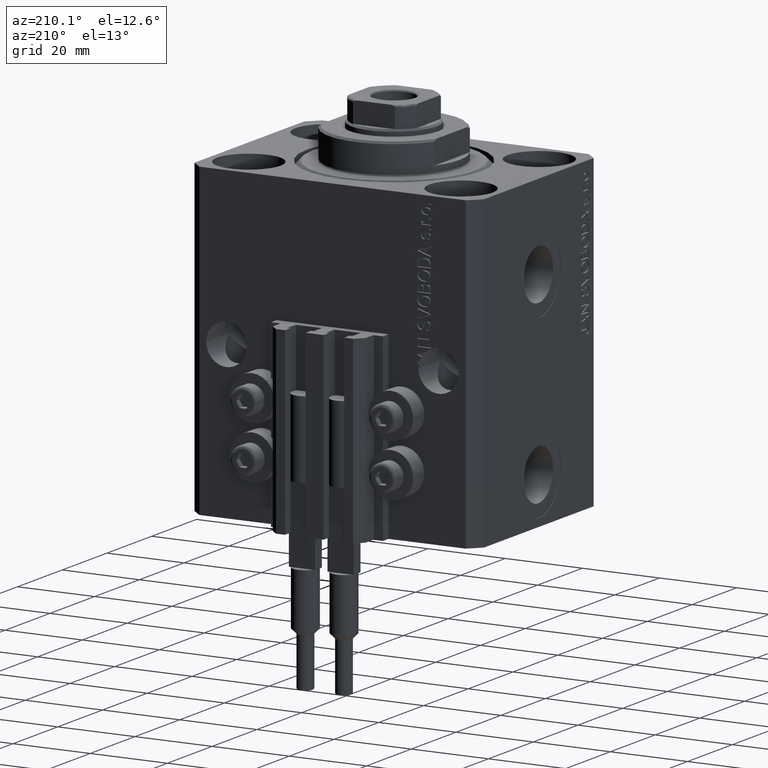
[diagram: clean part render]
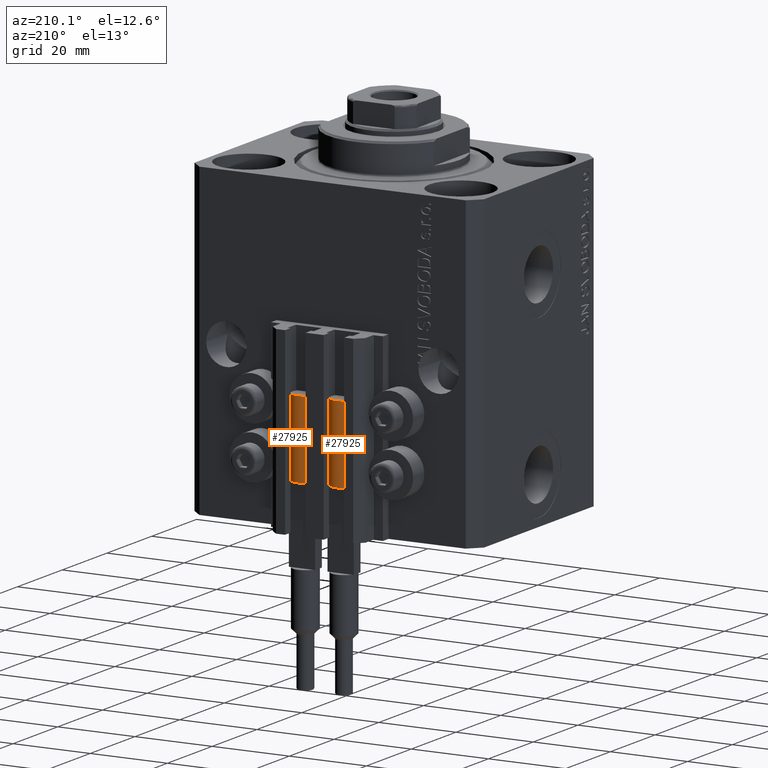
[diagram: same view with one multi-face feature highlighted, each face labeled with its STEP entity id]
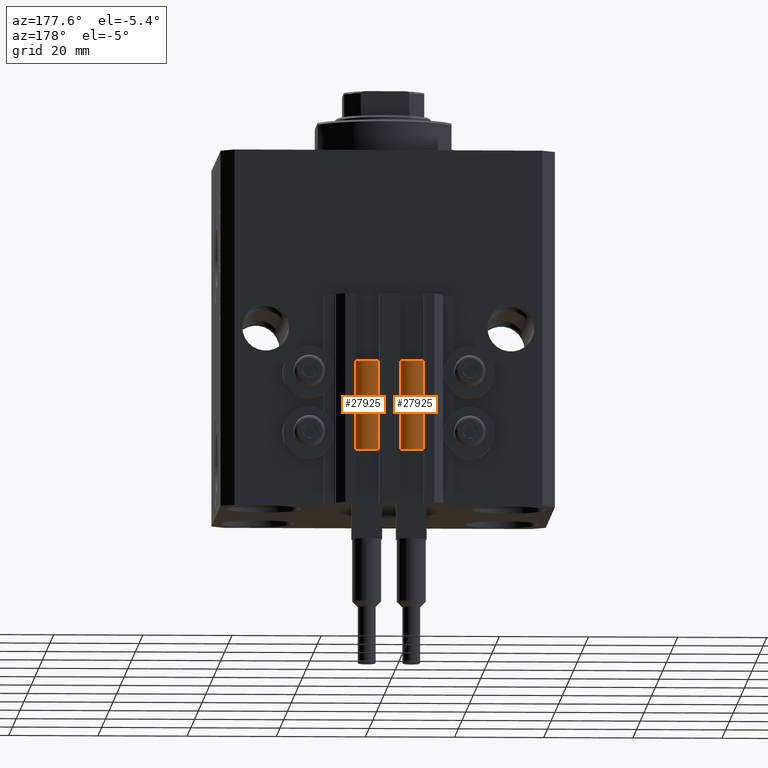
[diagram: same view with one multi-face feature highlighted, each face labeled with its STEP entity id]
A machine part, auxiliary view. The highlighted faces form ONE feature: a constant-radius fillet chain: 2 tangent blend faces with common blend radius 3.4 mm. The faces share edges in the B-rep.
A second angle (auxiliary view) of the same feature is appended — it is thin or edge-on in the first view.
Their STEP definitions:
[1] entity #27925 (Cylinder):
#1376 = VERTEX_POINT ( 'NONE', #9596 ) ;
#1841 = DIRECTION ( 'NONE',  ( 0.000000000000000000, 0.000000000000000000, 1.000000000000000000 ) ) ;
#2106 = CIRCLE ( 'NONE', #15311, 3.400000000000000355 ) ;
#2521 = ORIENTED_EDGE ( 'NONE', *, *, #45898, .F. ) ;
#2677 = CARTESIAN_POINT ( 'NONE',  ( 0.000000000000000000, 0.000000000000000000, 0.000000000000000000 ) ) ;
#3028 = CARTESIAN_POINT ( 'NONE',  ( -3.399999999999999467, -4.915049848600952119E-16, 20.00000000000000000 ) ) ;
#3090 = DIRECTION ( 'NONE',  ( 1.000000000000000000, 0.000000000000000000, 0.000000000000000000 ) ) ;
#6149 = EDGE_CURVE ( 'NONE', #43970, #1376, #7376, .T. ) ;
#6162 = CARTESIAN_POINT ( 'NONE',  ( 3.400000000000000355, 4.163799117101001052E-16, 0.000000000000000000 ) ) ;
#6591 = DIRECTION ( 'NONE',  ( -1.000000000000000000, 0.000000000000000000, 0.000000000000000000 ) ) ;
#7376 = LINE ( 'NONE', #37096, #19727 ) ;
#7628 = DIRECTION ( 'NONE',  ( -0.000000000000000000, -0.000000000000000000, -1.000000000000000000 ) ) ;
#9596 = CARTESIAN_POINT ( 'NONE',  ( -3.400000000000000355, 0.000000000000000000, 0.000000000000000000 ) ) ;
#12020 = DIRECTION ( 'NONE',  ( -0.000000000000000000, -0.000000000000000000, -1.000000000000000000 ) ) ;
#12600 = CARTESIAN_POINT ( 'NONE',  ( -3.051229260478471428, 1.500000000000000000, 20.00000000000000000 ) ) ;
#14536 = DIRECTION ( 'NONE',  ( 1.000000000000000000, 0.000000000000000000, 0.000000000000000000 ) ) ;
#14580 = CIRCLE ( 'NONE', #41792, 3.400000000000000355 ) ;
#15220 = ORIENTED_EDGE ( 'NONE', *, *, #15653, .T. ) ;
#15311 = AXIS2_PLACEMENT_3D ( 'NONE', #2677, #43588, #29447 ) ;
#15653 = EDGE_CURVE ( 'NONE', #28659, #26592, #30758, .T. ) ;
#16704 = DIRECTION ( 'NONE',  ( 1.000000000000000000, 0.000000000000000000, 0.000000000000000000 ) ) ;
#17460 = DIRECTION ( 'NONE',  ( 0.000000000000000000, 0.000000000000000000, 1.000000000000000000 ) ) ;
#19210 = CIRCLE ( 'NONE', #46434, 3.400000000000000355 ) ;
#19727 = VECTOR ( 'NONE', #7628, 1000.000000000000000 ) ;
#20610 = EDGE_LOOP ( 'NONE', ( #28368, #15220, #28831, #36126, #2521, #20662 ) ) ;
#20662 = ORIENTED_EDGE ( 'NONE', *, *, #29338, .F. ) ;
#21148 = AXIS2_PLACEMENT_3D ( 'NONE', #28760, #31939, #6591 ) ;
#23500 = CIRCLE ( 'NONE', #37499, 3.400000000000000355 ) ;
#23974 = VECTOR ( 'NONE', #12020, 1000.000000000000000 ) ;
#25350 = FACE_OUTER_BOUND ( 'NONE', #20610, .T. ) ;
#26592 = VERTEX_POINT ( 'NONE', #6162 ) ;
#27925 = ADVANCED_FACE ( 'NONE', ( #25350 ), #47036, .T. ) ;
#28368 = ORIENTED_EDGE ( 'NONE', *, *, #47118, .F. ) ;
#28436 = CARTESIAN_POINT ( 'NONE',  ( 0.000000000000000000, 0.000000000000000000, 20.00000000000000000 ) ) ;
#28446 = DIRECTION ( 'NONE',  ( 0.000000000000000000, 0.000000000000000000, 1.000000000000000000 ) ) ;
#28548 = CARTESIAN_POINT ( 'NONE',  ( 3.051229260478471428, 1.500000000000000000, 20.00000000000000000 ) ) ;
#28659 = VERTEX_POINT ( 'NONE', #41744 ) ;
#28760 = CARTESIAN_POINT ( 'NONE',  ( 0.000000000000000000, 0.000000000000000000, 20.00000000000000000 ) ) ;
#28831 = ORIENTED_EDGE ( 'NONE', *, *, #45450, .T. ) ;
#29338 = EDGE_CURVE ( 'NONE', #44274, #31695, #23500, .T. ) ;
#29447 = DIRECTION ( 'NONE',  ( 1.000000000000000000, 0.000000000000000000, 0.000000000000000000 ) ) ;
#30758 = LINE ( 'NONE', #41718, #23974 ) ;
#31074 = CARTESIAN_POINT ( 'NONE',  ( 0.000000000000000000, 0.000000000000000000, 20.00000000000000000 ) ) ;
#31695 = VERTEX_POINT ( 'NONE', #12600 ) ;
#31939 = DIRECTION ( 'NONE',  ( -0.000000000000000000, -0.000000000000000000, -1.000000000000000000 ) ) ;
#36126 = ORIENTED_EDGE ( 'NONE', *, *, #6149, .F. ) ;
#37096 = CARTESIAN_POINT ( 'NONE',  ( -3.400000000000000355, 0.000000000000000000, 20.00000000000000000 ) ) ;
#37499 = AXIS2_PLACEMENT_3D ( 'NONE', #31074, #1841, #16704 ) ;
#41718 = CARTESIAN_POINT ( 'NONE',  ( 3.400000000000000355, 4.163799117101001052E-16, 20.00000000000000000 ) ) ;
#41744 = CARTESIAN_POINT ( 'NONE',  ( 3.400000000000000355, 0.000000000000000000, 20.00000000000000000 ) ) ;
#41792 = AXIS2_PLACEMENT_3D ( 'NONE', #28436, #17460, #3090 ) ;
#43588 = DIRECTION ( 'NONE',  ( 0.000000000000000000, 0.000000000000000000, 1.000000000000000000 ) ) ;
#43970 = VERTEX_POINT ( 'NONE', #3028 ) ;
#44274 = VERTEX_POINT ( 'NONE', #28548 ) ;
#45450 = EDGE_CURVE ( 'NONE', #26592, #1376, #2106, .T. ) ;
#45898 = EDGE_CURVE ( 'NONE', #31695, #43970, #19210, .T. ) ;
#46434 = AXIS2_PLACEMENT_3D ( 'NONE', #47910, #28446, #14536 ) ;
#47036 = CYLINDRICAL_SURFACE ( 'NONE', #21148, 3.400000000000000355 ) ;
#47118 = EDGE_CURVE ( 'NONE', #28659, #44274, #14580, .T. ) ;
#47910 = CARTESIAN_POINT ( 'NONE',  ( 0.000000000000000000, 0.000000000000000000, 20.00000000000000000 ) ) ;
[2] entity #27925 (Cylinder):
#1376 = VERTEX_POINT ( 'NONE', #9596 ) ;
#1841 = DIRECTION ( 'NONE',  ( 0.000000000000000000, 0.000000000000000000, 1.000000000000000000 ) ) ;
#2106 = CIRCLE ( 'NONE', #15311, 3.400000000000000355 ) ;
#2521 = ORIENTED_EDGE ( 'NONE', *, *, #45898, .F. ) ;
#2677 = CARTESIAN_POINT ( 'NONE',  ( 0.000000000000000000, 0.000000000000000000, 0.000000000000000000 ) ) ;
#3028 = CARTESIAN_POINT ( 'NONE',  ( -3.399999999999999467, -4.915049848600952119E-16, 20.00000000000000000 ) ) ;
#3090 = DIRECTION ( 'NONE',  ( 1.000000000000000000, 0.000000000000000000, 0.000000000000000000 ) ) ;
#6149 = EDGE_CURVE ( 'NONE', #43970, #1376, #7376, .T. ) ;
#6162 = CARTESIAN_POINT ( 'NONE',  ( 3.400000000000000355, 4.163799117101001052E-16, 0.000000000000000000 ) ) ;
#6591 = DIRECTION ( 'NONE',  ( -1.000000000000000000, 0.000000000000000000, 0.000000000000000000 ) ) ;
#7376 = LINE ( 'NONE', #37096, #19727 ) ;
#7628 = DIRECTION ( 'NONE',  ( -0.000000000000000000, -0.000000000000000000, -1.000000000000000000 ) ) ;
#9596 = CARTESIAN_POINT ( 'NONE',  ( -3.400000000000000355, 0.000000000000000000, 0.000000000000000000 ) ) ;
#12020 = DIRECTION ( 'NONE',  ( -0.000000000000000000, -0.000000000000000000, -1.000000000000000000 ) ) ;
#12600 = CARTESIAN_POINT ( 'NONE',  ( -3.051229260478471428, 1.500000000000000000, 20.00000000000000000 ) ) ;
#14536 = DIRECTION ( 'NONE',  ( 1.000000000000000000, 0.000000000000000000, 0.000000000000000000 ) ) ;
#14580 = CIRCLE ( 'NONE', #41792, 3.400000000000000355 ) ;
#15220 = ORIENTED_EDGE ( 'NONE', *, *, #15653, .T. ) ;
#15311 = AXIS2_PLACEMENT_3D ( 'NONE', #2677, #43588, #29447 ) ;
#15653 = EDGE_CURVE ( 'NONE', #28659, #26592, #30758, .T. ) ;
#16704 = DIRECTION ( 'NONE',  ( 1.000000000000000000, 0.000000000000000000, 0.000000000000000000 ) ) ;
#17460 = DIRECTION ( 'NONE',  ( 0.000000000000000000, 0.000000000000000000, 1.000000000000000000 ) ) ;
#19210 = CIRCLE ( 'NONE', #46434, 3.400000000000000355 ) ;
#19727 = VECTOR ( 'NONE', #7628, 1000.000000000000000 ) ;
#20610 = EDGE_LOOP ( 'NONE', ( #28368, #15220, #28831, #36126, #2521, #20662 ) ) ;
#20662 = ORIENTED_EDGE ( 'NONE', *, *, #29338, .F. ) ;
#21148 = AXIS2_PLACEMENT_3D ( 'NONE', #28760, #31939, #6591 ) ;
#23500 = CIRCLE ( 'NONE', #37499, 3.400000000000000355 ) ;
#23974 = VECTOR ( 'NONE', #12020, 1000.000000000000000 ) ;
#25350 = FACE_OUTER_BOUND ( 'NONE', #20610, .T. ) ;
#26592 = VERTEX_POINT ( 'NONE', #6162 ) ;
#27925 = ADVANCED_FACE ( 'NONE', ( #25350 ), #47036, .T. ) ;
#28368 = ORIENTED_EDGE ( 'NONE', *, *, #47118, .F. ) ;
#28436 = CARTESIAN_POINT ( 'NONE',  ( 0.000000000000000000, 0.000000000000000000, 20.00000000000000000 ) ) ;
#28446 = DIRECTION ( 'NONE',  ( 0.000000000000000000, 0.000000000000000000, 1.000000000000000000 ) ) ;
#28548 = CARTESIAN_POINT ( 'NONE',  ( 3.051229260478471428, 1.500000000000000000, 20.00000000000000000 ) ) ;
#28659 = VERTEX_POINT ( 'NONE', #41744 ) ;
#28760 = CARTESIAN_POINT ( 'NONE',  ( 0.000000000000000000, 0.000000000000000000, 20.00000000000000000 ) ) ;
#28831 = ORIENTED_EDGE ( 'NONE', *, *, #45450, .T. ) ;
#29338 = EDGE_CURVE ( 'NONE', #44274, #31695, #23500, .T. ) ;
#29447 = DIRECTION ( 'NONE',  ( 1.000000000000000000, 0.000000000000000000, 0.000000000000000000 ) ) ;
#30758 = LINE ( 'NONE', #41718, #23974 ) ;
#31074 = CARTESIAN_POINT ( 'NONE',  ( 0.000000000000000000, 0.000000000000000000, 20.00000000000000000 ) ) ;
#31695 = VERTEX_POINT ( 'NONE', #12600 ) ;
#31939 = DIRECTION ( 'NONE',  ( -0.000000000000000000, -0.000000000000000000, -1.000000000000000000 ) ) ;
#36126 = ORIENTED_EDGE ( 'NONE', *, *, #6149, .F. ) ;
#37096 = CARTESIAN_POINT ( 'NONE',  ( -3.400000000000000355, 0.000000000000000000, 20.00000000000000000 ) ) ;
#37499 = AXIS2_PLACEMENT_3D ( 'NONE', #31074, #1841, #16704 ) ;
#41718 = CARTESIAN_POINT ( 'NONE',  ( 3.400000000000000355, 4.163799117101001052E-16, 20.00000000000000000 ) ) ;
#41744 = CARTESIAN_POINT ( 'NONE',  ( 3.400000000000000355, 0.000000000000000000, 20.00000000000000000 ) ) ;
#41792 = AXIS2_PLACEMENT_3D ( 'NONE', #28436, #17460, #3090 ) ;
#43588 = DIRECTION ( 'NONE',  ( 0.000000000000000000, 0.000000000000000000, 1.000000000000000000 ) ) ;
#43970 = VERTEX_POINT ( 'NONE', #3028 ) ;
#44274 = VERTEX_POINT ( 'NONE', #28548 ) ;
#45450 = EDGE_CURVE ( 'NONE', #26592, #1376, #2106, .T. ) ;
#45898 = EDGE_CURVE ( 'NONE', #31695, #43970, #19210, .T. ) ;
#46434 = AXIS2_PLACEMENT_3D ( 'NONE', #47910, #28446, #14536 ) ;
#47036 = CYLINDRICAL_SURFACE ( 'NONE', #21148, 3.400000000000000355 ) ;
#47118 = EDGE_CURVE ( 'NONE', #28659, #44274, #14580, .T. ) ;
#47910 = CARTESIAN_POINT ( 'NONE',  ( 0.000000000000000000, 0.000000000000000000, 20.00000000000000000 ) ) ;